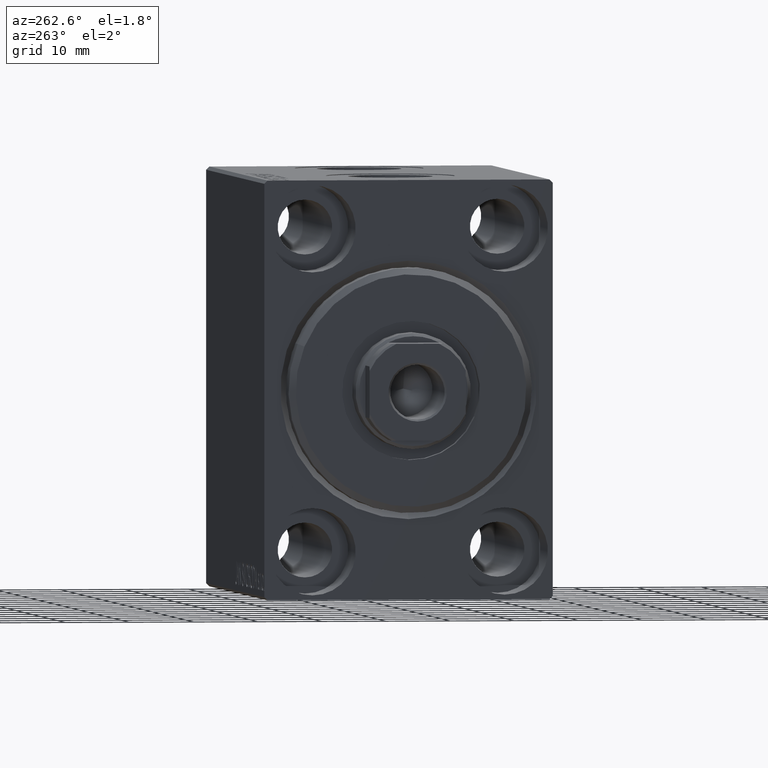
[diagram: clean part render]
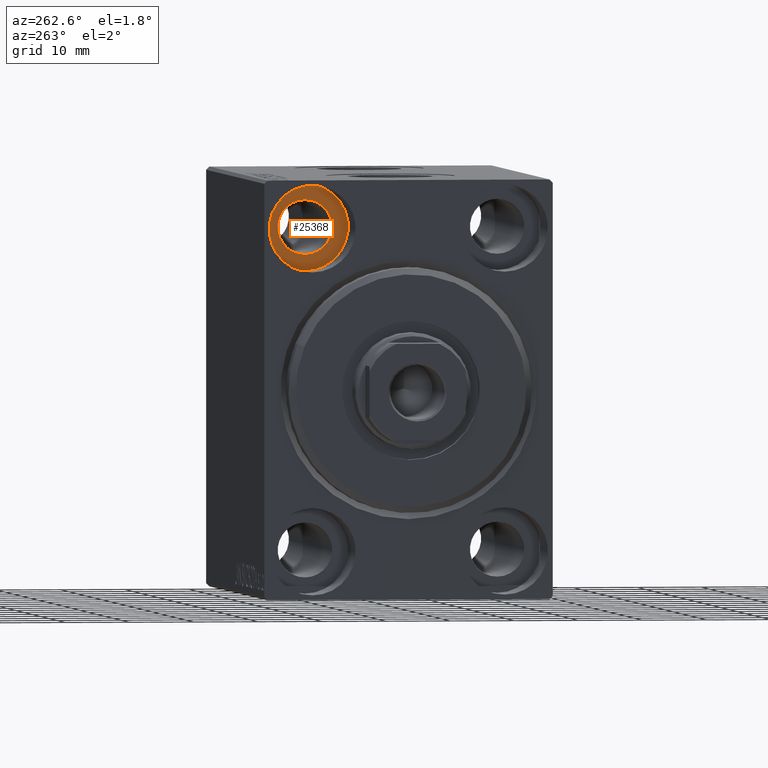
[diagram: same view with one face highlighted and labeled with its STEP entity id]
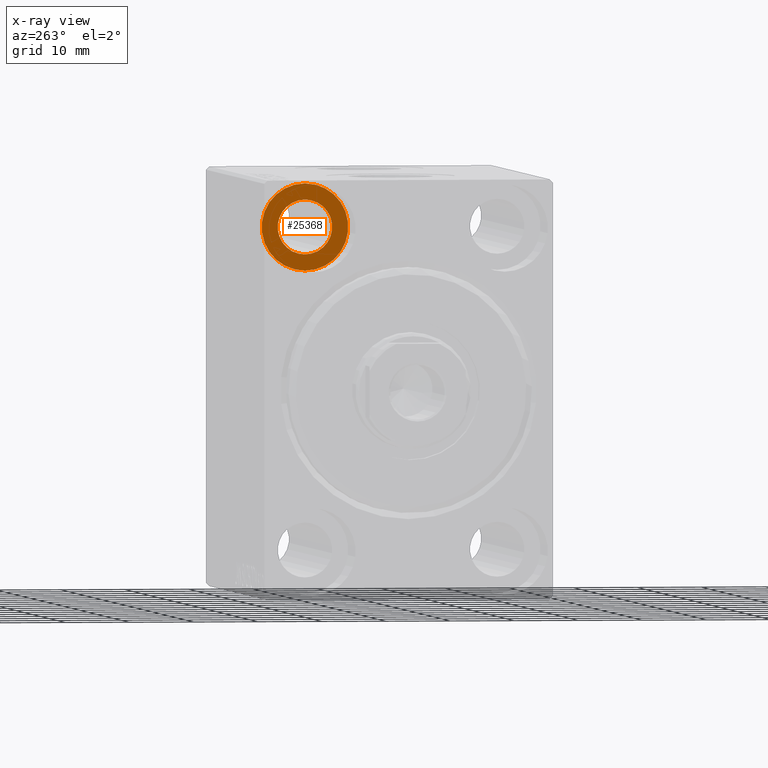
[diagram: x-ray of the same camera — body ghosted, the highlighted face saturated]
A machine part, auxiliary view. The second image highlights one B-rep face of the part: STEP entity #25368.
The next image is the same camera in x-ray: the body ghosted, the highlighted face saturated — about 0% of this face is hidden behind the body in this view.
In plain terms, the highlighted planar face has unit normal (-1, 0, 0).
Its self-contained STEP definition (entity closure, byte-faithful):
#880 = VERTEX_POINT ( 'NONE', #5279 ) ;
#2103 = AXIS2_PLACEMENT_3D ( 'NONE', #10471, #30941, #33628 ) ;
#3024 = DIRECTION ( 'NONE',  ( 0.000000000000000000, 0.000000000000000000, 1.000000000000000000 ) ) ;
#3368 = CIRCLE ( 'NONE', #42419, 6.749999999999999112 ) ;
#4431 = CARTESIAN_POINT ( 'NONE',  ( 9.000000000000001776, 15.00000000000000355, 25.00000000000000000 ) ) ;
#4611 = CARTESIAN_POINT ( 'NONE',  ( 9.000000000000000000, 15.00000000000000355, 25.00000000000000000 ) ) ;
#4720 = AXIS2_PLACEMENT_3D ( 'NONE', #4431, #24662, #31796 ) ;
#5279 = CARTESIAN_POINT ( 'NONE',  ( 9.000000000000001776, 15.00000000000000355, 29.25000000000000000 ) ) ;
#6117 = EDGE_LOOP ( 'NONE', ( #13430, #19077 ) ) ;
#6476 = FACE_OUTER_BOUND ( 'NONE', #6117, .T. ) ;
#6626 = VERTEX_POINT ( 'NONE', #15193 ) ;
#9093 = CIRCLE ( 'NONE', #28971, 6.749999999999999112 ) ;
#10471 = CARTESIAN_POINT ( 'NONE',  ( 9.000000000000000000, 0.000000000000000000, 0.000000000000000000 ) ) ;
#12631 = EDGE_LOOP ( 'NONE', ( #21002, #28195 ) ) ;
#13430 = ORIENTED_EDGE ( 'NONE', *, *, #17125, .T. ) ;
#13508 = DIRECTION ( 'NONE',  ( 0.000000000000000000, 0.000000000000000000, 1.000000000000000000 ) ) ;
#14448 = DIRECTION ( 'NONE',  ( 0.000000000000000000, 0.000000000000000000, 1.000000000000000000 ) ) ;
#14522 = EDGE_CURVE ( 'NONE', #880, #6626, #24584, .T. ) ;
#15193 = CARTESIAN_POINT ( 'NONE',  ( 9.000000000000001776, 15.00000000000000355, 20.75000000000000355 ) ) ;
#17125 = EDGE_CURVE ( 'NONE', #18865, #25251, #3368, .T. ) ;
#17721 = DIRECTION ( 'NONE',  ( -1.000000000000000000, 0.000000000000000000, 0.000000000000000000 ) ) ;
#18170 = DIRECTION ( 'NONE',  ( -1.000000000000000000, 0.000000000000000000, 0.000000000000000000 ) ) ;
#18865 = VERTEX_POINT ( 'NONE', #31060 ) ;
#19077 = ORIENTED_EDGE ( 'NONE', *, *, #24206, .T. ) ;
#21002 = ORIENTED_EDGE ( 'NONE', *, *, #14522, .F. ) ;
#24206 = EDGE_CURVE ( 'NONE', #25251, #18865, #9093, .T. ) ;
#24460 = CARTESIAN_POINT ( 'NONE',  ( 9.000000000000000000, 15.00000000000000355, 25.00000000000000000 ) ) ;
#24584 = CIRCLE ( 'NONE', #4720, 4.249999999999996447 ) ;
#24662 = DIRECTION ( 'NONE',  ( -1.000000000000000000, 0.000000000000000000, 0.000000000000000000 ) ) ;
#25251 = VERTEX_POINT ( 'NONE', #31865 ) ;
#25368 = ADVANCED_FACE ( 'NONE', ( #34291, #6476 ), #30280, .T. ) ;
#26896 = EDGE_CURVE ( 'NONE', #6626, #880, #33444, .T. ) ;
#28195 = ORIENTED_EDGE ( 'NONE', *, *, #26896, .F. ) ;
#28971 = AXIS2_PLACEMENT_3D ( 'NONE', #24460, #38040, #14448 ) ;
#30280 = PLANE ( 'NONE',  #2103 ) ;
#30941 = DIRECTION ( 'NONE',  ( -1.000000000000000000, 0.000000000000000000, 0.000000000000000000 ) ) ;
#31060 = CARTESIAN_POINT ( 'NONE',  ( 9.000000000000000000, 15.00000000000000355, 31.75000000000000000 ) ) ;
#31796 = DIRECTION ( 'NONE',  ( 0.000000000000000000, 0.000000000000000000, 1.000000000000000000 ) ) ;
#31865 = CARTESIAN_POINT ( 'NONE',  ( 9.000000000000000000, 15.00000000000000355, 18.25000000000000355 ) ) ;
#33444 = CIRCLE ( 'NONE', #41935, 4.249999999999996447 ) ;
#33628 = DIRECTION ( 'NONE',  ( 0.000000000000000000, 0.000000000000000000, 1.000000000000000000 ) ) ;
#34291 = FACE_BOUND ( 'NONE', #12631, .T. ) ;
#38040 = DIRECTION ( 'NONE',  ( -1.000000000000000000, 0.000000000000000000, 0.000000000000000000 ) ) ;
#41935 = AXIS2_PLACEMENT_3D ( 'NONE', #43987, #17721, #13508 ) ;
#42419 = AXIS2_PLACEMENT_3D ( 'NONE', #4611, #18170, #3024 ) ;
#43987 = CARTESIAN_POINT ( 'NONE',  ( 9.000000000000001776, 15.00000000000000355, 25.00000000000000000 ) ) ;